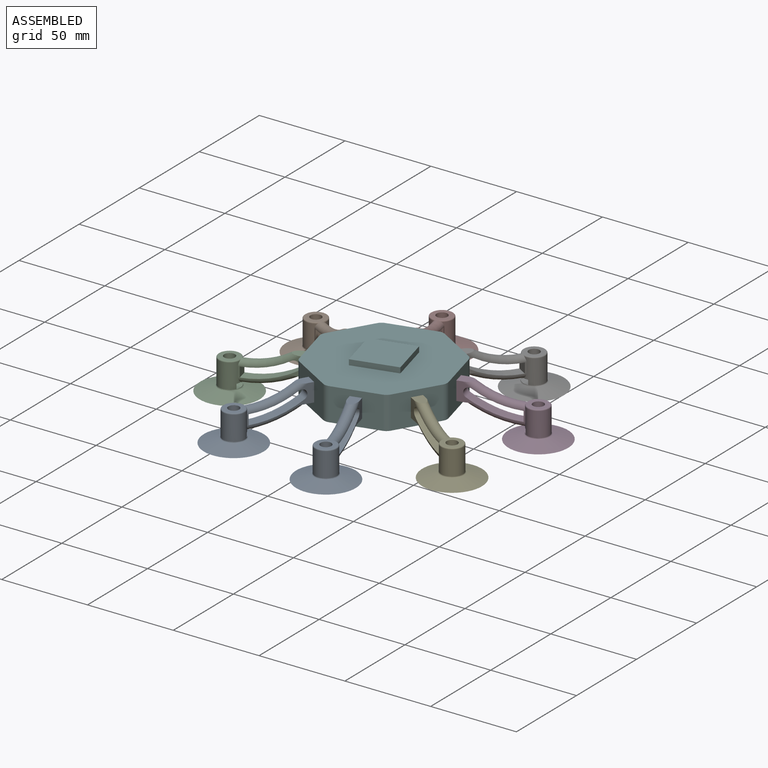
[diagram: assembled view]
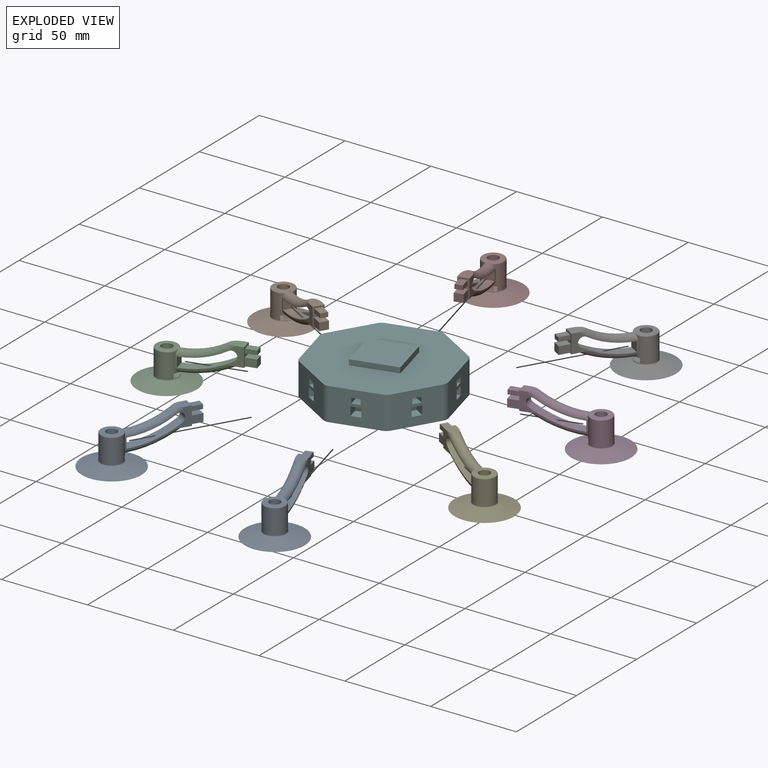
[diagram: exploded view]
GUIDED TOUR — MATED ASSEMBLY (Onshape document 2c69b0f62aaf6b4f8146618b, AutoMate assembly 2c69b0f62aaf6b4f8146618b_2bfa650f6eb8ac7df8bd2d8d_5acf13a950e20be320c6e51d_default)

This assembly has 9 components, labeled P0..P8 below (a component is one placed occurrence of a part; the same part can appear more than once), held together by 8 mates. A mate is a constraint between two components; its type names the relative motion it leaves free:
  FASTENED — locks the two components together rigidly (no relative motion).
Axis/direction vectors are unit vectors and 'through' points are millimeter coordinates, both in the assembly's world frame.

MATES
  1. FASTENED "Fastened 4": P5 <-> P3, direction (0.969, 0.249, 0.000) through (28.76, 7.56, -0.92) mm
  2. FASTENED "Fastened 2": P7 <-> P5, direction (0.249, -0.969, 0.000) through (-9.89, 30.42, -1.28) mm
  3. FASTENED "Fastened 8": P2 <-> P5, direction (0.969, 0.249, 0.000) through (-32.75, -8.22, -1.29) mm
  4. FASTENED "Fastened 3": P5 <-> P6, direction (0.509, 0.861, 0.000) through (14.17, 26.99, -1.27) mm
  5. FASTENED "Fastened 1": P1 <-> P5, direction (0.861, -0.509, 0.000) through (-29.32, 15.84, -1.29) mm
  6. FASTENED "Fastened 7": P0 <-> P5, direction (0.509, 0.861, 0.000) through (-18.16, -27.66, -0.66) mm
  7. FASTENED "Fastened 5": P4 <-> P5, direction (-0.861, 0.509, 0.000) through (25.33, -16.50, -0.66) mm
  8. FASTENED "Fastened 6": P5 <-> P8, direction (0.249, -0.969, 0.000) through (5.90, -31.09, -0.66) mm

ASSEMBLY ORDER
  1. P5 — the base component [order heuristic]
  2. P1 — core [order heuristic]
  3. P2 — core [order heuristic]
  4. P4 — core [order heuristic]
  5. P0 [order verified]
  6. P7 — core [order heuristic]
  7. P8 — core [order heuristic]
  8. P6 — core [order heuristic]
  9. P3 [order verified]
(P0, P3 verified with a relaxed clearance tolerance: the source model stores slight part interference there.)
Order-tag legend:
  [order verified] — this step's position reverses a verified removal order: the component was checked to insert without passing through the ones already placed.
  [order heuristic] — the first 7 components form the assembly's core: parts whose collision-free extraction could not be verified, listed in mate-graph order.

Of the 9 components, 1 carries the full construction recipe — the FeatureScript program that regenerates the part's solid from scratch; the rest are supplied as boundary geometry only.
Each toured component is shown spotlighted twice — in the assembled view, then in the exploded view, where a leader line traces a displaced component back to its assembled socket (saturated green if recipe-attached, orange if geometry-only; every other component desaturated gray) — followed by its recipe or geometry summary and the mates that hold it.
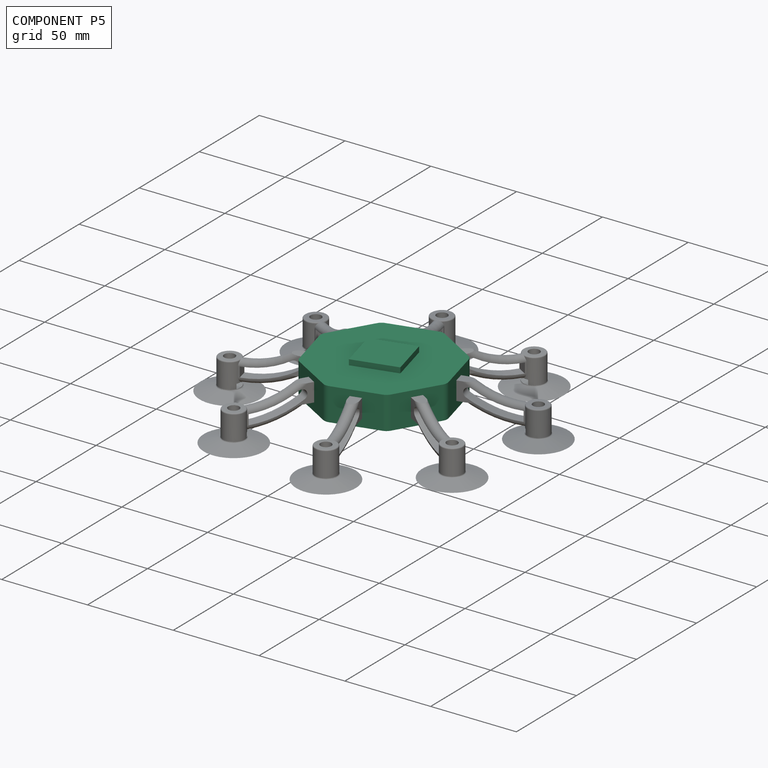
[diagram: component P5 — assembled]
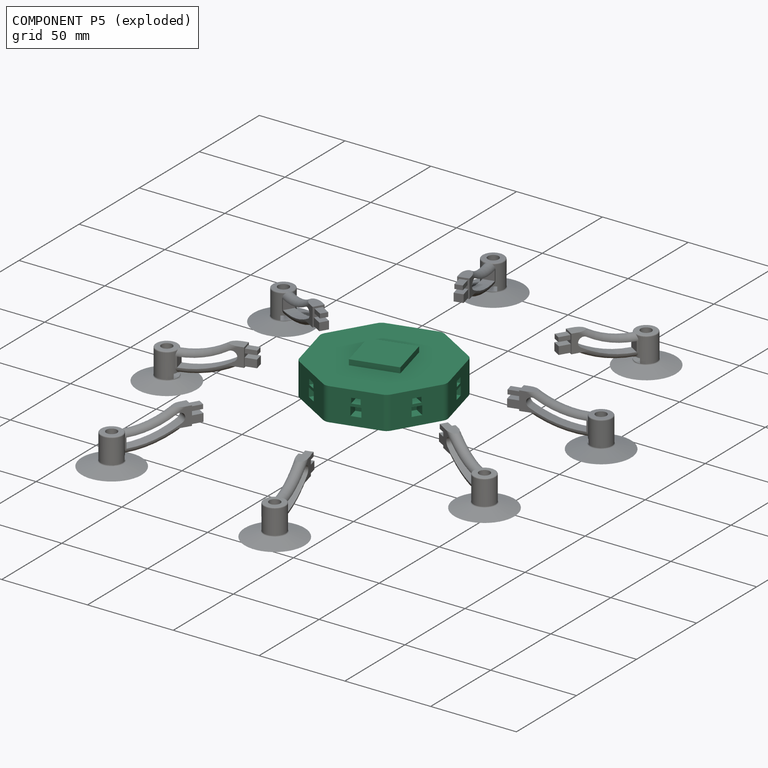
[diagram: component P5 — exploded]
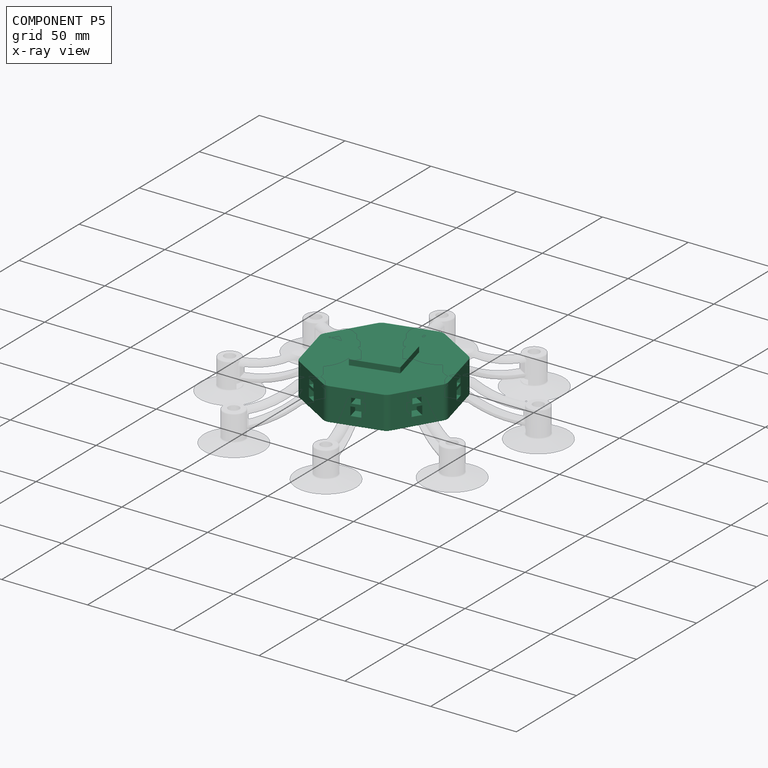
[diagram: component P5 — x-ray view]
COMPONENT P5 — recipe-attached (CADFS 00175157, mesh-verified: the recipe's output STEP matches this component's geometry to below the mesh-comparison resolution (tessellation chordal tolerance ~0.175 mm)).
Held by: FASTENED mate "Fastened 4" to P3; FASTENED mate "Fastened 2" to P7; FASTENED mate "Fastened 8" to P2; FASTENED mate "Fastened 3" to P6; FASTENED mate "Fastened 1" to P1; FASTENED mate "Fastened 7" to P0; FASTENED mate "Fastened 5" to P4; FASTENED mate "Fastened 6" to P8.
Construction recipe (FeatureScript — the CAD program that rebuilds this solid; sketch coordinates are in the units given by the * unit suffixes, e.g. mm):

FeatureScript 1511;
import(path : "onshape/std/geometry.fs", version : "1511.0");
import(path : "onshape/std/common.fs", version : "1511.0");
const mm = millimeter;
const VERTEX = EntityType.VERTEX;
const EDGE = EntityType.EDGE;
const FACE = EntityType.FACE;
const BODY = EntityType.BODY;
function v(x, y){return vector(x, y);}
function OD(order){return orderDisambiguation(order);}
function OSD(set){return originalSetDisambiguation(set);}
function TD(topology){return topologyDisambiguation(topology);}
function TDD(query){return trueDependencyDisambiguation(query);}
function sQuery(a, b, c) {return sketchEntityQuery(a, b, c);}

annotation { "Feature Type Name" : "Feature", "Feature Type Description" : "" }
export const myFeature = defineFeature(function(context is Context, id is Id, definition is map)
    precondition{}
    {
        {
            var Q0;
            Q0=qCreatedBy(makeId("Top.planeOp"),FACE);
            var sketch = newSketch(context, id + "F0", { "sketchPlane" : qUnion([Q0])});
            skCircle(sketch, "E0.cCircle", {"center": v(0, 0) * mm, "radius": 38.1 * mm, "construction": true});
            skLineSegment(sketch, "E0.0", {"start": v(-40.83, 5.82) * mm, "end": v(-24.75, 32.98) * mm});
            skLineSegment(sketch, "E0.1", {"start": v(-24.75, 32.98) * mm, "end": v(5.82, 40.83) * mm});
            skLineSegment(sketch, "E0.2", {"start": v(5.82, 40.83) * mm, "end": v(32.98, 24.75) * mm});
            skLineSegment(sketch, "E0.3", {"start": v(32.98, 24.75) * mm, "end": v(40.83, -5.82) * mm});
            skLineSegment(sketch, "E0.4", {"start": v(40.83, -5.82) * mm, "end": v(24.75, -32.98) * mm});
            skLineSegment(sketch, "E0.5", {"start": v(24.75, -32.98) * mm, "end": v(-5.82, -40.83) * mm});
            skLineSegment(sketch, "E0.6", {"start": v(-5.82, -40.83) * mm, "end": v(-32.98, -24.75) * mm});
            skLineSegment(sketch, "E0.7", {"start": v(-32.98, -24.75) * mm, "end": v(-40.83, 5.82) * mm});
            skPoint(sketch, "E0.0.midPoint", {"position": v(-32.8, 19.4) * mm});
            skLineSegment(sketch, "E1", {"start": v(32.8, -19.4) * mm, "end": v(-32.8, 19.4) * mm});
            skLineSegment(sketch, "E2", {"start": v(9.47, -36.9) * mm, "end": v(-9.47, 36.9) * mm});
            skLineSegment(sketch, "E3", {"start": v(19.4, 32.8) * mm, "end": v(-19.4, -32.8) * mm});
            skLineSegment(sketch, "E4", {"start": v(36.9, 9.47) * mm, "end": v(-36.9, -9.47) * mm});
            skSolve(sketch);
        }
        {
            var Q0;
            Q0=makeQuery(id+"F0.imprint","IMPRINT",FACE,{"disambiguationData":[TD([[makeQuery(id+"F0.imprint","IMPRINT",EDGE,{"derivedFrom":sQuery(id+"F0.wireOp",EDGE,"E0.0")}),-1.0]])]});
            var Q1;
            {var subQ0=sQuery(id+"F0.wireOp",EDGE,"E0.2");var subQ1=sQuery(id+"F0.wireOp",EDGE,"E0.1");var subQ2=makeQuery(id+"F0.imprint","INTERSECT",VERTEX,{"derivedFrom":[subQ1,subQ0]});Q1=makeQuery(id+"F0.imprint","IMPRINT",FACE,{"disambiguationData":[TD([[makeQuery(id+"F0.imprint","IMPRINT",EDGE,{"disambiguationData":[TD([[subQ2,1.0]])],"derivedFrom":subQ1}),-1.0]])]});}
            var Q2;
            {var subQ0=sQuery(id+"F0.wireOp",EDGE,"E0.3");var subQ1=sQuery(id+"F0.wireOp",EDGE,"E0.2");var subQ2=makeQuery(id+"F0.imprint","INTERSECT",VERTEX,{"derivedFrom":[subQ1,subQ0]});Q2=makeQuery(id+"F0.imprint","IMPRINT",FACE,{"disambiguationData":[TD([[makeQuery(id+"F0.imprint","IMPRINT",EDGE,{"disambiguationData":[TD([[subQ2,1.0]])],"derivedFrom":subQ1}),-1.0]])]});}
            var Q3;
            {var subQ0=sQuery(id+"F0.wireOp",EDGE,"E0.4");var subQ1=sQuery(id+"F0.wireOp",EDGE,"E0.3");var subQ2=makeQuery(id+"F0.imprint","INTERSECT",VERTEX,{"derivedFrom":[subQ1,subQ0]});Q3=makeQuery(id+"F0.imprint","IMPRINT",FACE,{"disambiguationData":[TD([[makeQuery(id+"F0.imprint","IMPRINT",EDGE,{"disambiguationData":[TD([[subQ2,1.0]])],"derivedFrom":subQ1}),-1.0]])]});}
            var Q4;
            {var subQ0=sQuery(id+"F0.wireOp",EDGE,"E0.5");var subQ1=sQuery(id+"F0.wireOp",EDGE,"E0.4");var subQ2=makeQuery(id+"F0.imprint","INTERSECT",VERTEX,{"derivedFrom":[subQ1,subQ0]});Q4=makeQuery(id+"F0.imprint","IMPRINT",FACE,{"disambiguationData":[TD([[makeQuery(id+"F0.imprint","IMPRINT",EDGE,{"disambiguationData":[TD([[subQ2,1.0]])],"derivedFrom":subQ1}),-1.0]])]});}
            var Q5;
            {var subQ0=sQuery(id+"F0.wireOp",EDGE,"E0.6");var subQ1=sQuery(id+"F0.wireOp",EDGE,"E0.5");var subQ2=makeQuery(id+"F0.imprint","INTERSECT",VERTEX,{"derivedFrom":[subQ1,subQ0]});Q5=makeQuery(id+"F0.imprint","IMPRINT",FACE,{"disambiguationData":[TD([[makeQuery(id+"F0.imprint","IMPRINT",EDGE,{"disambiguationData":[TD([[subQ2,1.0]])],"derivedFrom":subQ1}),-1.0]])]});}
            var Q6;
            {var subQ0=sQuery(id+"F0.wireOp",EDGE,"E0.7");var subQ1=sQuery(id+"F0.wireOp",EDGE,"E0.6");var subQ2=makeQuery(id+"F0.imprint","INTERSECT",VERTEX,{"derivedFrom":[subQ1,subQ0]});Q6=makeQuery(id+"F0.imprint","IMPRINT",FACE,{"disambiguationData":[TD([[makeQuery(id+"F0.imprint","IMPRINT",EDGE,{"disambiguationData":[TD([[subQ2,1.0]])],"derivedFrom":subQ1}),-1.0]])]});}
            extrude(context, id + "F1", {"entities" : qUnion([Q0, Q1, Q2, Q3, Q4, Q5, Q6]), "endBound" : BoundingType.SYMMETRIC, "depth" : 19.05 * mm});
        }
        {
            var Q0;
            Q0=makeQuery(id+"F1.opExtrude","SWEPT_FACE",FACE,{"disambiguationData":[OSD([sQuery(id+"F0.wireOp",EDGE,"E0.7")])]});
            var sketch = newSketch(context, id + "F2", { "sketchPlane" : qUnion([Q0])});
            skPoint(sketch, "E5.middle", {"position": v(0, 0) * mm});
            skPoint(sketch, "E6", {"position": v(0, -5.06) * mm});
            skLineSegment(sketch, "E7", {"start": v(-2.8, -2.52) * mm, "end": v(-2.8, 0) * mm});
            skLineSegment(sketch, "E8", {"start": v(2.8, -2.52) * mm, "end": v(2.8, 0) * mm});
            skLineSegment(sketch, "E9", {"start": v(-2.8, 0) * mm, "end": v(2.8, 0) * mm});
            skLineSegment(sketch, "E10.MirrorCS", {"start": v(-2.8, -2.52) * mm, "end": v(-2.8, -5.04) * mm});
            skLineSegment(sketch, "E11.MirrorCS", {"start": v(-2.8, -5.04) * mm, "end": v(2.8, -5.04) * mm});
            skLineSegment(sketch, "E12.MirrorCS", {"start": v(2.8, -2.52) * mm, "end": v(2.8, -5.04) * mm});
            skPoint(sketch, "E13", {"position": v(0, 1.56) * mm});
            skLineSegment(sketch, "E14", {"start": v(0, 1.56) * mm, "end": v(-2.41, 1.56) * mm});
            skLineSegment(sketch, "E15.MirrorCS", {"start": v(0, 1.56) * mm, "end": v(2.41, 1.56) * mm});
            skLineSegment(sketch, "E16", {"start": v(2.41, 1.56) * mm, "end": v(2.41, 4.6) * mm});
            skLineSegment(sketch, "E17.MirrorCS", {"start": v(-2.41, 1.56) * mm, "end": v(-2.41, 4.6) * mm});
            skLineSegment(sketch, "E18", {"start": v(-2.41, 4.6) * mm, "end": v(2.41, 4.6) * mm});
            skSolve(sketch);
        }
        {
            var Q0;
            Q0 = qSketchRegion(id + "F2", true);
            extrude(context, id + "F3", {"entities" : qUnion([Q0]), "operationType" : NewBodyOperationType.REMOVE, "oppositeDirection" : true, "depth" : 6.35 * mm});
        }
        {
            var Q0;
            Q0=makeQuery(id+"F1.opExtrude","SWEPT_FACE",FACE,{"disambiguationData":[OSD([sQuery(id+"F0.wireOp",EDGE,"E0.1")])]});
            var sketch = newSketch(context, id + "F4", { "sketchPlane" : qUnion([Q0])});
            skPoint(sketch, "E19", {"position": v(0, -9.53) * mm});
            skPoint(sketch, "E20", {"position": v(0, -5.04) * mm});
            skPoint(sketch, "E21", {"position": v(0, 1.6) * mm});
            skLineSegment(sketch, "E22", {"start": v(0, 1.6) * mm, "end": v(2.41, 1.6) * mm});
            skLineSegment(sketch, "E23", {"start": v(2.41, 1.6) * mm, "end": v(2.41, 4.64) * mm});
            skLineSegment(sketch, "E24", {"start": v(2.41, 4.64) * mm, "end": v(0, 4.64) * mm});
            skLineSegment(sketch, "E25.MirrorCS", {"start": v(-2.41, 4.64) * mm, "end": v(0, 4.64) * mm});
            skLineSegment(sketch, "E26.MirrorCS", {"start": v(-2.41, 1.6) * mm, "end": v(-2.41, 4.64) * mm});
            skLineSegment(sketch, "E27.MirrorCS", {"start": v(0, 1.6) * mm, "end": v(-2.41, 1.6) * mm});
            skLineSegment(sketch, "E28", {"start": v(0, -5.04) * mm, "end": v(2.8, -5.04) * mm});
            skLineSegment(sketch, "E29", {"start": v(2.8, -5.04) * mm, "end": v(2.8, 0.04) * mm});
            skLineSegment(sketch, "E30", {"start": v(2.8, 0.04) * mm, "end": v(0, 0) * mm});
            skLineSegment(sketch, "E31.MirrorCS", {"start": v(-2.8, 0.04) * mm, "end": v(0, 0) * mm});
            skLineSegment(sketch, "E32.MirrorCS", {"start": v(-2.8, -5.04) * mm, "end": v(-2.8, 0.04) * mm});
            skLineSegment(sketch, "E33.MirrorCS", {"start": v(0, -5.04) * mm, "end": v(-2.8, -5.04) * mm});
            skSolve(sketch);
        }
        {
            var Q0;
            Q0=makeQuery(id+"F4.imprint","IMPRINT",FACE,{"disambiguationData":[TD([[makeQuery(id+"F4.imprint","IMPRINT",EDGE,{"derivedFrom":sQuery(id+"F4.wireOp",EDGE,"LZL7hc5V-V0Lx-cx1U-TuNf-BSn2dO84Y1Hg")}),-1.0]])]});
            var Q1;
            Q1=makeQuery(id+"F4.imprint","IMPRINT",FACE,{"disambiguationData":[TD([[makeQuery(id+"F4.imprint","IMPRINT",EDGE,{"derivedFrom":sQuery(id+"F4.wireOp",EDGE,"E28")}),1.0]])]});
            var Q2;
            Q2=makeQuery(id+"F4.imprint","IMPRINT",FACE,{"disambiguationData":[TD([[makeQuery(id+"F4.imprint","IMPRINT",EDGE,{"derivedFrom":sQuery(id+"F4.wireOp",EDGE,"E22")}),1.0]])]});
            extrude(context, id + "F5", {"entities" : qUnion([Q0, Q1, Q2]), "operationType" : NewBodyOperationType.REMOVE, "oppositeDirection" : true, "depth" : 6.35 * mm});
        }
        {
            var Q0;
            Q0=makeQuery(id+"F1.opExtrude","SWEPT_FACE",FACE,{"disambiguationData":[OSD([sQuery(id+"F0.wireOp",EDGE,"E0.0")])]});
            var sketch = newSketch(context, id + "F6", { "sketchPlane" : qUnion([Q0])});
            skPoint(sketch, "E34", {"position": v(0, -5.04) * mm});
            skLineSegment(sketch, "E35", {"start": v(0, -5.04) * mm, "end": v(2.8, -5.04) * mm});
            skLineSegment(sketch, "E36", {"start": v(2.8, 0) * mm, "end": v(2.8, -5.04) * mm});
            skLineSegment(sketch, "E37.MirrorCS", {"start": v(-2.8, 0) * mm, "end": v(-2.8, -5.04) * mm});
            skLineSegment(sketch, "E38.MirrorCS", {"start": v(0, -5.04) * mm, "end": v(-2.8, -5.04) * mm});
            skPoint(sketch, "E39", {"position": v(0, 1.6) * mm});
            skLineSegment(sketch, "E40", {"start": v(-2.8, 0) * mm, "end": v(2.8, 0) * mm});
            skLineSegment(sketch, "E41", {"start": v(0, 1.6) * mm, "end": v(2.41, 1.6) * mm});
            skLineSegment(sketch, "E42", {"start": v(2.41, 1.6) * mm, "end": v(2.41, 4.64) * mm});
            skLineSegment(sketch, "E43", {"start": v(2.41, 4.64) * mm, "end": v(0, 4.64) * mm});
            skLineSegment(sketch, "E44.MirrorCS", {"start": v(-2.41, 4.64) * mm, "end": v(0, 4.64) * mm});
            skLineSegment(sketch, "E45.MirrorCS", {"start": v(-2.41, 1.6) * mm, "end": v(-2.41, 4.64) * mm});
            skLineSegment(sketch, "E46.MirrorCS", {"start": v(0, 1.6) * mm, "end": v(-2.41, 1.6) * mm});
            skSolve(sketch);
        }
        {
            var Q0;
            Q0=makeQuery(id+"F6.imprint","IMPRINT",FACE,{"disambiguationData":[TD([[makeQuery(id+"F6.imprint","IMPRINT",EDGE,{"derivedFrom":sQuery(id+"F6.wireOp",EDGE,"E41")}),1.0]])]});
            var Q1;
            Q1=makeQuery(id+"F6.imprint","IMPRINT",FACE,{"disambiguationData":[TD([[makeQuery(id+"F6.imprint","IMPRINT",EDGE,{"derivedFrom":sQuery(id+"F6.wireOp",EDGE,"E35")}),1.0]])]});
            extrude(context, id + "F7", {"entities" : qUnion([Q0, Q1]), "operationType" : NewBodyOperationType.REMOVE, "oppositeDirection" : true, "depth" : 6.35 * mm});
        }
        {
            var Q0;
            Q0=makeQuery(id+"F1.opExtrude","SWEPT_FACE",FACE,{"disambiguationData":[OSD([sQuery(id+"F0.wireOp",EDGE,"E0.2")])]});
            var sketch = newSketch(context, id + "F8", { "sketchPlane" : qUnion([Q0])});
            skPoint(sketch, "E47", {"position": v(0, -5.04) * mm});
            skLineSegment(sketch, "E48", {"start": v(0, -5.04) * mm, "end": v(2.8, -5.04) * mm});
            skLineSegment(sketch, "E49", {"start": v(2.8, -5.04) * mm, "end": v(2.8, 0.04) * mm});
            skLineSegment(sketch, "E50.MirrorCS", {"start": v(-2.8, -5.04) * mm, "end": v(-2.8, 0.04) * mm});
            skLineSegment(sketch, "E51.MirrorCS", {"start": v(0, -5.04) * mm, "end": v(-2.8, -5.04) * mm});
            skLineSegment(sketch, "E52", {"start": v(-2.8, 0.04) * mm, "end": v(2.8, 0.04) * mm});
            skPoint(sketch, "E53", {"position": v(0, 1.63) * mm});
            skLineSegment(sketch, "E54", {"start": v(0, 1.63) * mm, "end": v(2.41, 1.63) * mm});
            skLineSegment(sketch, "E55", {"start": v(2.41, 1.63) * mm, "end": v(2.41, 4.68) * mm});
            skLineSegment(sketch, "E56.MirrorCS", {"start": v(0, 1.63) * mm, "end": v(-2.41, 1.63) * mm});
            skLineSegment(sketch, "E57.MirrorCS", {"start": v(-2.41, 1.63) * mm, "end": v(-2.41, 4.68) * mm});
            skLineSegment(sketch, "E58", {"start": v(-2.41, 4.68) * mm, "end": v(2.41, 4.68) * mm});
            skSolve(sketch);
        }
        {
            var Q0;
            Q0=makeQuery(id+"F8.imprint","IMPRINT",FACE,{"disambiguationData":[TD([[makeQuery(id+"F8.imprint","IMPRINT",EDGE,{"derivedFrom":sQuery(id+"F8.wireOp",EDGE,"E54")}),1.0]])]});
            var Q1;
            Q1=makeQuery(id+"F8.imprint","IMPRINT",FACE,{"disambiguationData":[TD([[makeQuery(id+"F8.imprint","IMPRINT",EDGE,{"derivedFrom":sQuery(id+"F8.wireOp",EDGE,"E48")}),1.0]])]});
            extrude(context, id + "F9", {"entities" : qUnion([Q0, Q1]), "operationType" : NewBodyOperationType.REMOVE, "oppositeDirection" : true, "depth" : 6.35 * mm});
        }
        {
            var Q0;
            Q0=makeQuery(id+"F1.opExtrude","SWEPT_FACE",FACE,{"disambiguationData":[OSD([sQuery(id+"F0.wireOp",EDGE,"E0.3")])]});
            var sketch = newSketch(context, id + "F10", { "sketchPlane" : qUnion([Q0])});
            skPoint(sketch, "E59", {"position": v(0, -4.7) * mm});
            skLineSegment(sketch, "E60", {"start": v(0, -4.7) * mm, "end": v(2.8, -4.7) * mm});
            skLineSegment(sketch, "E61", {"start": v(2.8, -4.7) * mm, "end": v(2.8, 0.39) * mm});
            skLineSegment(sketch, "E62.MirrorCS", {"start": v(-2.8, -4.7) * mm, "end": v(-2.8, 0.39) * mm});
            skLineSegment(sketch, "E63.MirrorCS", {"start": v(0, -4.7) * mm, "end": v(-2.8, -4.7) * mm});
            skLineSegment(sketch, "E64", {"start": v(-2.8, 0.39) * mm, "end": v(2.8, 0.39) * mm});
            skPoint(sketch, "E65", {"position": v(0, 1.98) * mm});
            skLineSegment(sketch, "E66", {"start": v(0, 1.98) * mm, "end": v(2.41, 1.98) * mm});
            skLineSegment(sketch, "E67", {"start": v(2.41, 1.98) * mm, "end": v(2.41, 5.03) * mm});
            skLineSegment(sketch, "E68.MirrorCS", {"start": v(0, 1.98) * mm, "end": v(-2.41, 1.98) * mm});
            skLineSegment(sketch, "E69.MirrorCS", {"start": v(-2.41, 1.98) * mm, "end": v(-2.41, 5.03) * mm});
            skLineSegment(sketch, "E70", {"start": v(-2.41, 5.03) * mm, "end": v(2.41, 5.03) * mm});
            skSolve(sketch);
        }
        {
            var Q0;
            Q0 = qSketchRegion(id + "F10", true);
            extrude(context, id + "F11", {"entities" : qUnion([Q0]), "operationType" : NewBodyOperationType.REMOVE, "oppositeDirection" : true, "depth" : 6.35 * mm});
        }
        {
            var Q0;
            Q0=makeQuery(id+"F1.opExtrude","SWEPT_FACE",FACE,{"disambiguationData":[OSD([sQuery(id+"F0.wireOp",EDGE,"E0.4")])]});
            var sketch = newSketch(context, id + "F12", { "sketchPlane" : qUnion([Q0])});
            skPoint(sketch, "E71", {"position": v(0, -8.9) * mm});
            skPoint(sketch, "E72", {"position": v(0, -4.42) * mm});
            skPoint(sketch, "E73", {"position": v(0, 2.22) * mm});
            skLineSegment(sketch, "E74", {"start": v(0, 2.22) * mm, "end": v(2.41, 2.22) * mm});
            skLineSegment(sketch, "E75", {"start": v(2.41, 2.22) * mm, "end": v(2.41, 5.26) * mm});
            skLineSegment(sketch, "E76", {"start": v(2.41, 5.26) * mm, "end": v(0, 5.26) * mm});
            skLineSegment(sketch, "E77.MirrorCS", {"start": v(-2.41, 5.26) * mm, "end": v(0, 5.26) * mm});
            skLineSegment(sketch, "E78.MirrorCS", {"start": v(-2.41, 2.22) * mm, "end": v(-2.41, 5.26) * mm});
            skLineSegment(sketch, "E79.MirrorCS", {"start": v(0, 2.22) * mm, "end": v(-2.41, 2.22) * mm});
            skLineSegment(sketch, "E80", {"start": v(0, -4.42) * mm, "end": v(2.8, -4.42) * mm});
            skLineSegment(sketch, "E81", {"start": v(2.8, -4.42) * mm, "end": v(2.8, 0.66) * mm});
            skLineSegment(sketch, "E82", {"start": v(2.8, 0.66) * mm, "end": v(0, 0.62) * mm});
            skLineSegment(sketch, "E83.MirrorCS", {"start": v(-2.8, 0.66) * mm, "end": v(0, 0.62) * mm});
            skLineSegment(sketch, "E84.MirrorCS", {"start": v(-2.8, -4.42) * mm, "end": v(-2.8, 0.66) * mm});
            skLineSegment(sketch, "E85.MirrorCS", {"start": v(0, -4.42) * mm, "end": v(-2.8, -4.42) * mm});
            skSolve(sketch);
        }
        {
            var Q0;
            Q0=makeQuery(id+"F12.imprint","IMPRINT",FACE,{"disambiguationData":[TD([[makeQuery(id+"F12.imprint","IMPRINT",EDGE,{"derivedFrom":sQuery(id+"F12.wireOp",EDGE,"E80")}),1.0]])]});
            var Q1;
            Q1=makeQuery(id+"F12.imprint","IMPRINT",FACE,{"disambiguationData":[TD([[makeQuery(id+"F12.imprint","IMPRINT",EDGE,{"derivedFrom":sQuery(id+"F12.wireOp",EDGE,"E74")}),1.0]])]});
            extrude(context, id + "F13", {"entities" : qUnion([Q0, Q1]), "operationType" : NewBodyOperationType.REMOVE, "oppositeDirection" : true, "depth" : 6.35 * mm});
        }
        {
            var Q0;
            Q0=makeQuery(id+"F1.opExtrude","SWEPT_FACE",FACE,{"disambiguationData":[OSD([sQuery(id+"F0.wireOp",EDGE,"E0.5")])]});
            var sketch = newSketch(context, id + "F14", { "sketchPlane" : qUnion([Q0])});
            skPoint(sketch, "E86", {"position": v(0, -8.9) * mm});
            skPoint(sketch, "E87", {"position": v(0, -4.42) * mm});
            skPoint(sketch, "E88", {"position": v(0, 2.22) * mm});
            skLineSegment(sketch, "E89", {"start": v(0, 2.22) * mm, "end": v(2.41, 2.22) * mm});
            skLineSegment(sketch, "E90", {"start": v(2.41, 2.22) * mm, "end": v(2.41, 5.26) * mm});
            skLineSegment(sketch, "E91", {"start": v(2.41, 5.26) * mm, "end": v(0, 5.26) * mm});
            skLineSegment(sketch, "E92.MirrorCS", {"start": v(-2.41, 5.26) * mm, "end": v(0, 5.26) * mm});
            skLineSegment(sketch, "E93.MirrorCS", {"start": v(-2.41, 2.22) * mm, "end": v(-2.41, 5.26) * mm});
            skLineSegment(sketch, "E94.MirrorCS", {"start": v(0, 2.22) * mm, "end": v(-2.41, 2.22) * mm});
            skLineSegment(sketch, "E95", {"start": v(0, -4.42) * mm, "end": v(2.8, -4.42) * mm});
            skLineSegment(sketch, "E96", {"start": v(2.8, -4.42) * mm, "end": v(2.8, 0.66) * mm});
            skLineSegment(sketch, "E97", {"start": v(2.8, 0.66) * mm, "end": v(0, 0.62) * mm});
            skLineSegment(sketch, "E98.MirrorCS", {"start": v(-2.8, 0.66) * mm, "end": v(0, 0.62) * mm});
            skLineSegment(sketch, "E99.MirrorCS", {"start": v(-2.8, -4.42) * mm, "end": v(-2.8, 0.66) * mm});
            skLineSegment(sketch, "E100.MirrorCS", {"start": v(0, -4.42) * mm, "end": v(-2.8, -4.42) * mm});
            skSolve(sketch);
        }
        {
            var Q0;
            Q0=makeQuery(id+"F14.imprint","IMPRINT",FACE,{"disambiguationData":[TD([[makeQuery(id+"F14.imprint","IMPRINT",EDGE,{"derivedFrom":sQuery(id+"F14.wireOp",EDGE,"E95")}),1.0]])]});
            var Q1;
            Q1=makeQuery(id+"F14.imprint","IMPRINT",FACE,{"disambiguationData":[TD([[makeQuery(id+"F14.imprint","IMPRINT",EDGE,{"derivedFrom":sQuery(id+"F14.wireOp",EDGE,"E89")}),1.0]])]});
            extrude(context, id + "F15", {"entities" : qUnion([Q0, Q1]), "operationType" : NewBodyOperationType.REMOVE, "oppositeDirection" : true, "depth" : 6.35 * mm});
        }
        {
            var Q0;
            Q0=makeQuery(id+"F1.opExtrude","SWEPT_FACE",FACE,{"disambiguationData":[OSD([sQuery(id+"F0.wireOp",EDGE,"E0.6")])]});
            var sketch = newSketch(context, id + "F16", { "sketchPlane" : qUnion([Q0])});
            skPoint(sketch, "E101", {"position": v(0, -8.9) * mm});
            skPoint(sketch, "E102", {"position": v(0, -4.42) * mm});
            skPoint(sketch, "E103", {"position": v(0, 2.22) * mm});
            skLineSegment(sketch, "E104", {"start": v(0, 2.22) * mm, "end": v(2.41, 2.22) * mm});
            skLineSegment(sketch, "E105", {"start": v(2.41, 2.22) * mm, "end": v(2.41, 5.26) * mm});
            skLineSegment(sketch, "E106", {"start": v(2.41, 5.26) * mm, "end": v(0, 5.26) * mm});
            skLineSegment(sketch, "E107.MirrorCS", {"start": v(-2.41, 5.26) * mm, "end": v(0, 5.26) * mm});
            skLineSegment(sketch, "E108.MirrorCS", {"start": v(-2.41, 2.22) * mm, "end": v(-2.41, 5.26) * mm});
            skLineSegment(sketch, "E109.MirrorCS", {"start": v(0, 2.22) * mm, "end": v(-2.41, 2.22) * mm});
            skLineSegment(sketch, "E110", {"start": v(0, -4.42) * mm, "end": v(2.8, -4.42) * mm});
            skLineSegment(sketch, "E111", {"start": v(2.8, -4.42) * mm, "end": v(2.8, 0.66) * mm});
            skLineSegment(sketch, "E112", {"start": v(2.8, 0.66) * mm, "end": v(0, 0.62) * mm});
            skLineSegment(sketch, "E113.MirrorCS", {"start": v(-2.8, 0.66) * mm, "end": v(0, 0.62) * mm});
            skLineSegment(sketch, "E114.MirrorCS", {"start": v(-2.8, -4.42) * mm, "end": v(-2.8, 0.66) * mm});
            skLineSegment(sketch, "E115.MirrorCS", {"start": v(0, -4.42) * mm, "end": v(-2.8, -4.42) * mm});
            skSolve(sketch);
        }
        {
            var Q0;
            Q0=makeQuery(id+"F16.imprint","IMPRINT",FACE,{"disambiguationData":[TD([[makeQuery(id+"F16.imprint","IMPRINT",EDGE,{"derivedFrom":sQuery(id+"F16.wireOp",EDGE,"E104")}),1.0]])]});
            var Q1;
            Q1=makeQuery(id+"F16.imprint","IMPRINT",FACE,{"disambiguationData":[TD([[makeQuery(id+"F16.imprint","IMPRINT",EDGE,{"derivedFrom":sQuery(id+"F16.wireOp",EDGE,"E110")}),1.0]])]});
            extrude(context, id + "F17", {"entities" : qUnion([Q0, Q1]), "operationType" : NewBodyOperationType.REMOVE, "oppositeDirection" : true, "depth" : 6.35 * mm});
        }
        {
            var Q0;
            Q0=makeQuery(id+"F1.opExtrude","CAP_FACE",FACE,{"disambiguationData":[OSD([sQuery(id+"F0.wireOp",EDGE,"E0.0"),sQuery(id+"F0.wireOp",EDGE,"E0.1"),sQuery(id+"F0.wireOp",EDGE,"E0.2"),sQuery(id+"F0.wireOp",EDGE,"E0.3"),sQuery(id+"F0.wireOp",EDGE,"E0.4"),sQuery(id+"F0.wireOp",EDGE,"E0.5"),sQuery(id+"F0.wireOp",EDGE,"E0.6"),sQuery(id+"F0.wireOp",EDGE,"E0.7")])],"isStart":false});
            var sketch = newSketch(context, id + "F18", { "sketchPlane" : qUnion([Q0])});
            skLineSegment(sketch, "E116", {"start": v(-24.75, 32.98) * mm, "end": v(-5.82, -40.83) * mm});
            skLineSegment(sketch, "E117", {"start": v(5.82, 40.83) * mm, "end": v(24.75, -32.98) * mm});
            skLineSegment(sketch, "E118", {"start": v(3.16, -12.3) * mm, "end": v(-12.13, -16.22) * mm});
            skLineSegment(sketch, "E119", {"start": v(3.16, -12.3) * mm, "end": v(18.44, -8.38) * mm});
            skLineSegment(sketch, "E120", {"start": v(-3.16, 12.3) * mm, "end": v(-18.44, 8.38) * mm});
            skLineSegment(sketch, "E121", {"start": v(-3.16, 12.3) * mm, "end": v(12.13, 16.22) * mm});
            skPoint(sketch, "E122", {"position": v(-15.86, 9.04) * mm});
            skPoint(sketch, "E123", {"position": v(9.54, 15.56) * mm});
            skPoint(sketch, "E124", {"position": v(-9.54, -15.56) * mm});
            skPoint(sketch, "E125", {"position": v(15.86, -9.04) * mm});
            skLineSegment(sketch, "E126", {"start": v(-15.86, 9.04) * mm, "end": v(-9.54, -15.56) * mm});
            skLineSegment(sketch, "E127", {"start": v(9.54, 15.56) * mm, "end": v(15.86, -9.04) * mm});
            skSolve(sketch);
        }
        {
            var Q0;
            {var subQ4=sQuery(id+"F18.wireOp",EDGE,"E126");Q0=makeQuery(id+"F18.imprint","IMPRINT",FACE,{"disambiguationData":[TD([[makeQuery(id+"F18.imprint","IMPRINT",EDGE,{"derivedFrom":subQ4}),1.0]])]});}
            extrude(context, id + "F19", {"entities" : qUnion([Q0]), "operationType" : NewBodyOperationType.ADD, "depth" : 3.17 * mm});
        }
        {
            var Q0;
            Q0=makeQuery(id+"F1.opExtrude","SWEPT_EDGE",EDGE,{"disambiguationData":[OSD([sQuery(id+"F0.wireOp",EDGE,"E0.5"),sQuery(id+"F0.wireOp",EDGE,"E0.6")])]});
            var Q1;
            Q1=makeQuery(id+"F1.opExtrude","SWEPT_EDGE",EDGE,{"disambiguationData":[OSD([sQuery(id+"F0.wireOp",EDGE,"E0.4"),sQuery(id+"F0.wireOp",EDGE,"E0.5")])]});
            var Q2;
            Q2=makeQuery(id+"F1.opExtrude","SWEPT_EDGE",EDGE,{"disambiguationData":[OSD([sQuery(id+"F0.wireOp",EDGE,"E0.3"),sQuery(id+"F0.wireOp",EDGE,"E0.4")])]});
            var Q3;
            Q3=makeQuery(id+"F1.opExtrude","SWEPT_EDGE",EDGE,{"disambiguationData":[OSD([sQuery(id+"F0.wireOp",EDGE,"E0.2"),sQuery(id+"F0.wireOp",EDGE,"E0.3")])]});
            var Q4;
            Q4=makeQuery(id+"F1.opExtrude","SWEPT_EDGE",EDGE,{"disambiguationData":[OSD([sQuery(id+"F0.wireOp",EDGE,"E0.1"),sQuery(id+"F0.wireOp",EDGE,"E0.2")])]});
            var Q5;
            Q5=makeQuery(id+"F1.opExtrude","SWEPT_EDGE",EDGE,{"disambiguationData":[OSD([sQuery(id+"F0.wireOp",EDGE,"E0.0"),sQuery(id+"F0.wireOp",EDGE,"E0.1")])]});
            var Q6;
            Q6=makeQuery(id+"F1.opExtrude","SWEPT_EDGE",EDGE,{"disambiguationData":[OSD([sQuery(id+"F0.wireOp",EDGE,"E0.0"),sQuery(id+"F0.wireOp",EDGE,"E0.7")])]});
            var Q7;
            Q7=makeQuery(id+"F1.opExtrude","SWEPT_EDGE",EDGE,{"disambiguationData":[OSD([sQuery(id+"F0.wireOp",EDGE,"E0.6"),sQuery(id+"F0.wireOp",EDGE,"E0.7")])]});
            fillet(context, id + "F20", {"entities" : qUnion([Q0, Q1, Q2, Q3, Q4, Q5, Q6, Q7]), "radius" : 5.08 * mm, "tangentPropagation" : true, "allowEdgeOverflow" : false});
        }
    });
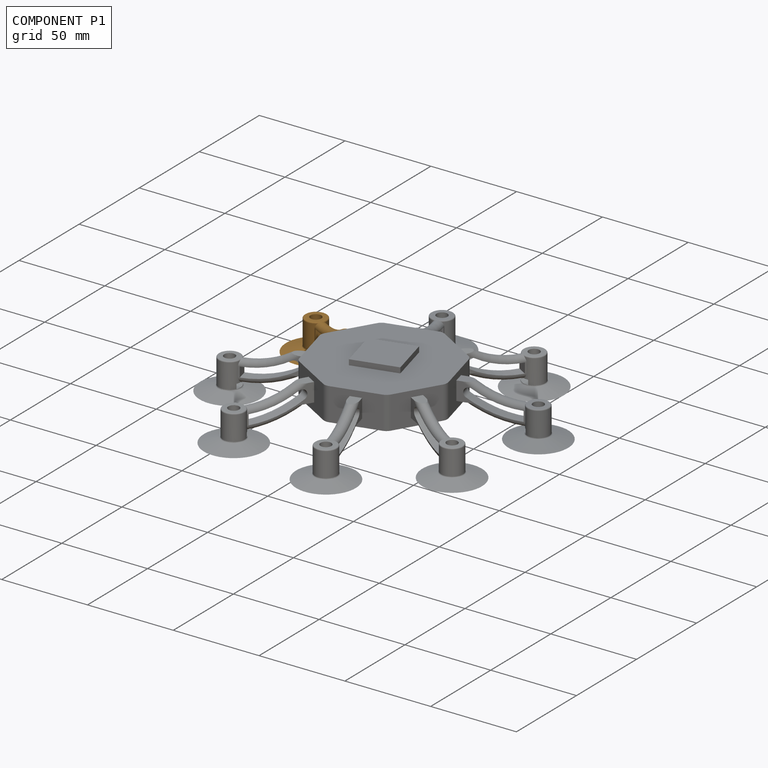
[diagram: component P1 — assembled]
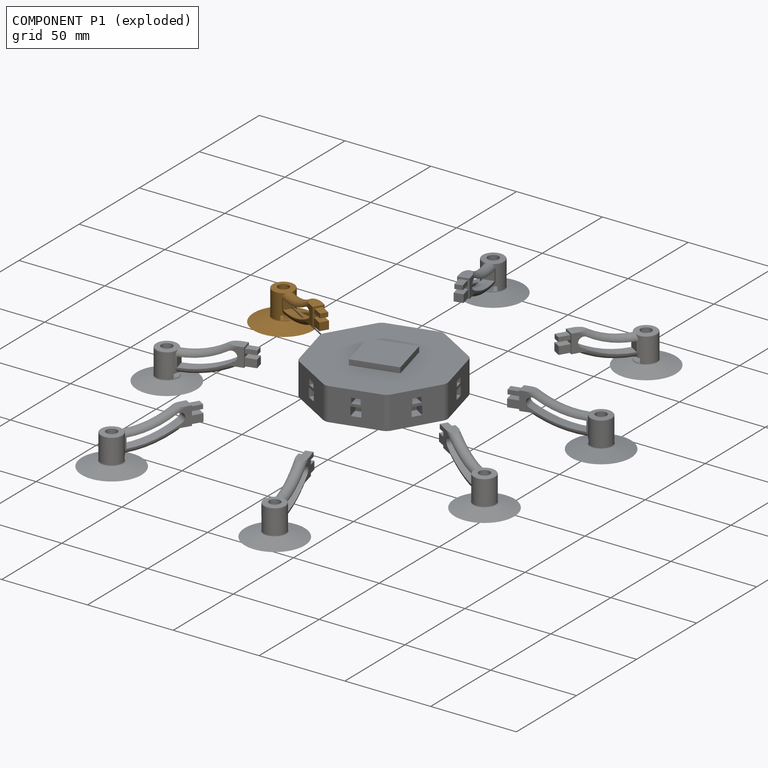
[diagram: component P1 — exploded]
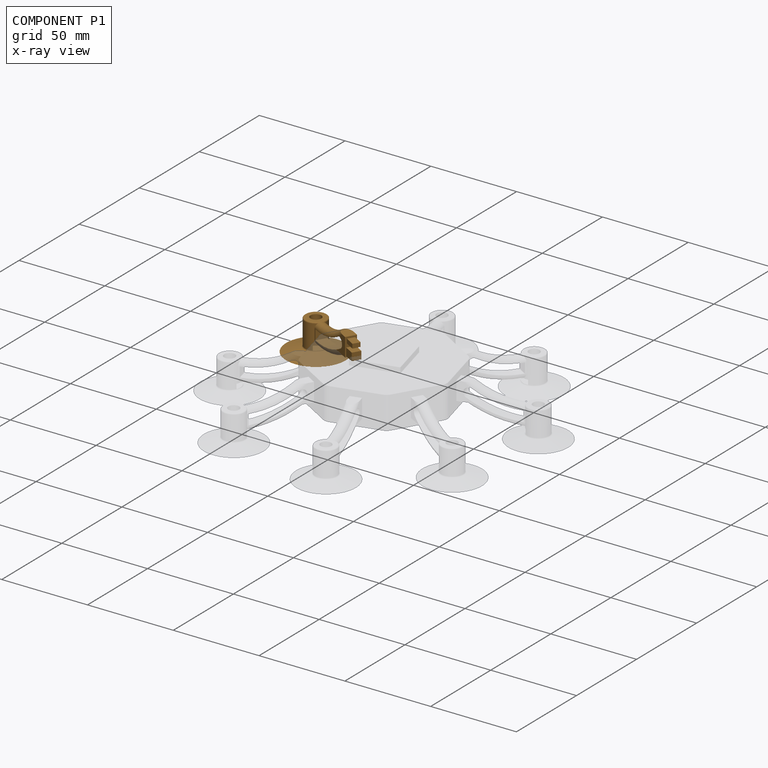
[diagram: component P1 — x-ray view]
COMPONENT P1 — geometry summary (no construction recipe available for this part):
  bounding box: 64.4 x 34.8 x 28.1 mm
  B-rep topology: 1 solid, 39 faces, 194 edges
  volume: 4360 mm^3 (7% of its bounding box)
  symmetry: mirror-symmetric across its y mid-plane
Held by: FASTENED mate "Fastened 1" to P5.
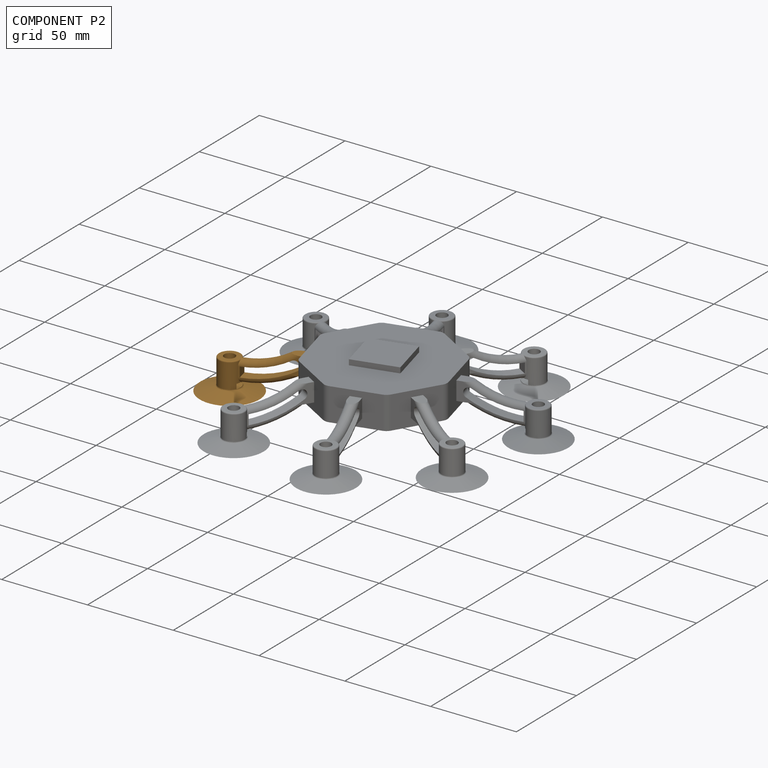
[diagram: component P2 — assembled]
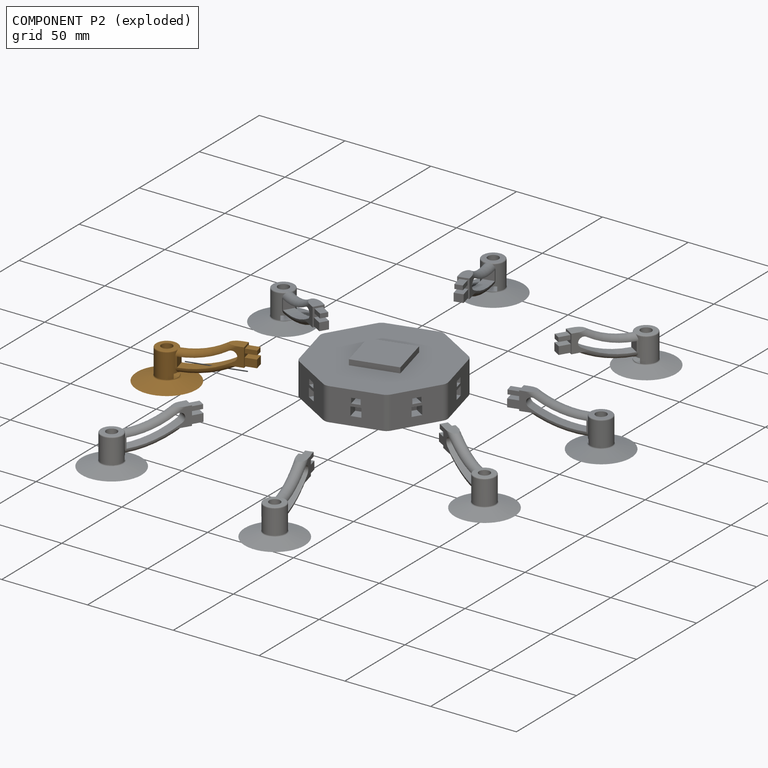
[diagram: component P2 — exploded]
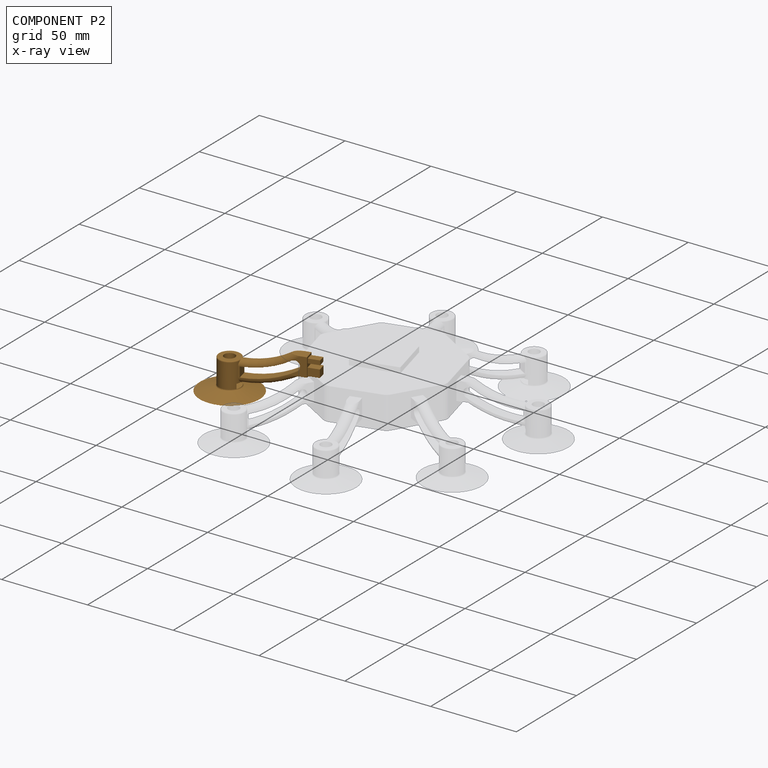
[diagram: component P2 — x-ray view]
COMPONENT P2 — geometry summary (no construction recipe available for this part):
  bounding box: 64.4 x 34.8 x 28.1 mm
  B-rep topology: 1 solid, 39 faces, 194 edges
  volume: 4360 mm^3 (7% of its bounding box)
  symmetry: mirror-symmetric across its y mid-plane
Held by: FASTENED mate "Fastened 8" to P5.
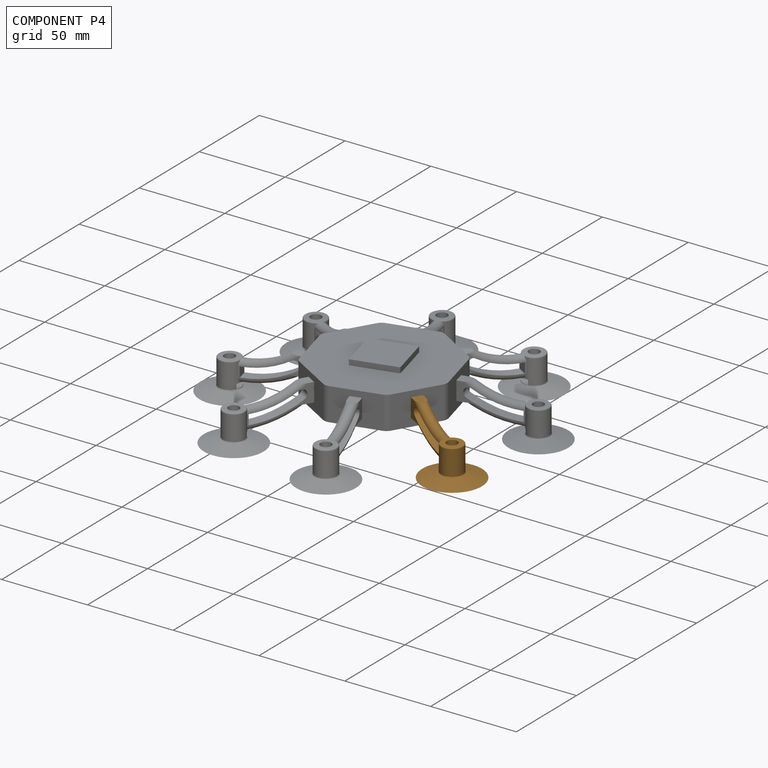
[diagram: component P4 — assembled]
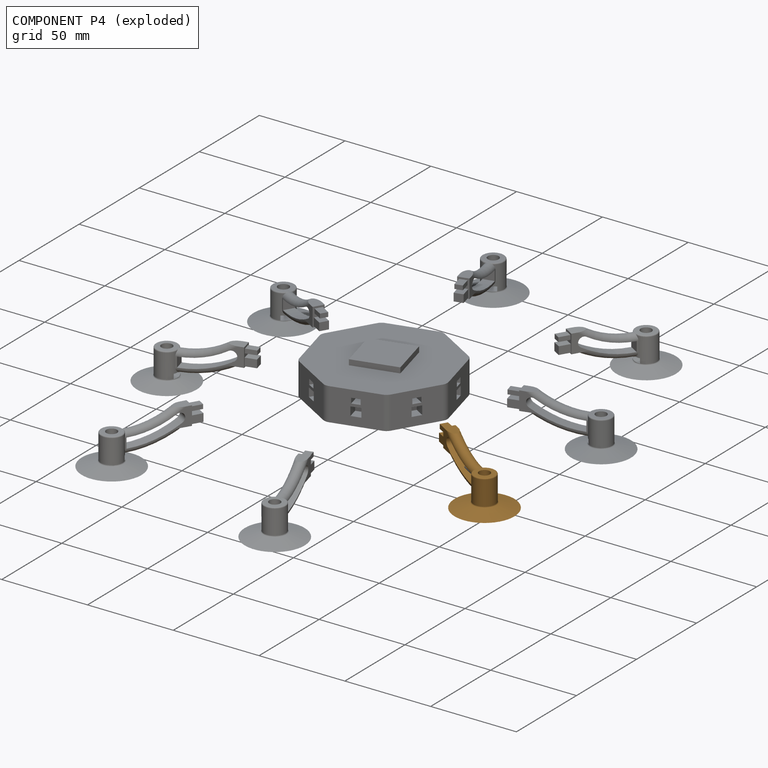
[diagram: component P4 — exploded]
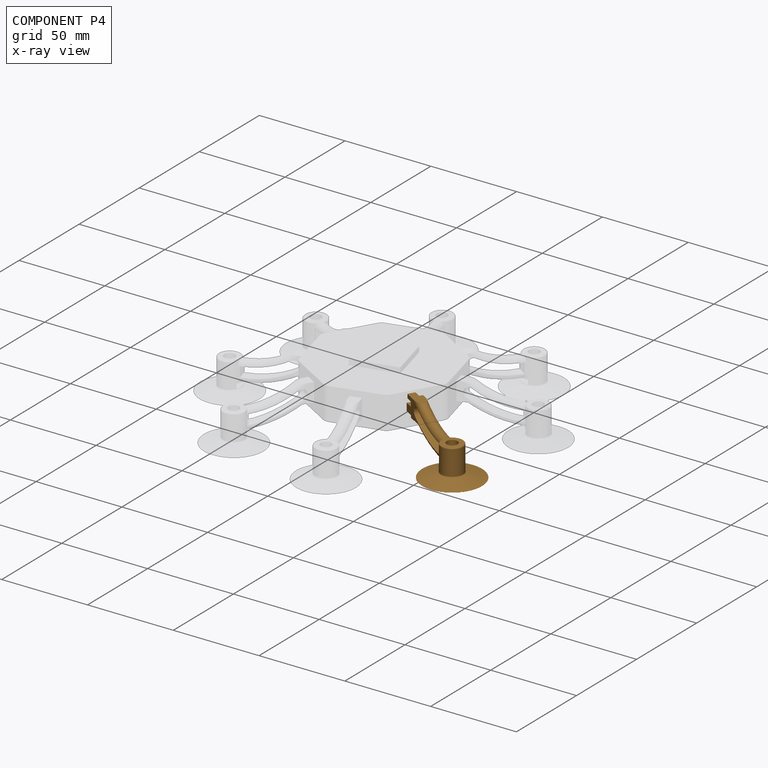
[diagram: component P4 — x-ray view]
COMPONENT P4 — geometry summary (no construction recipe available for this part):
  bounding box: 64.4 x 34.8 x 28.1 mm
  B-rep topology: 1 solid, 39 faces, 194 edges
  volume: 4360 mm^3 (7% of its bounding box)
  symmetry: mirror-symmetric across its y mid-plane
Held by: FASTENED mate "Fastened 5" to P5.
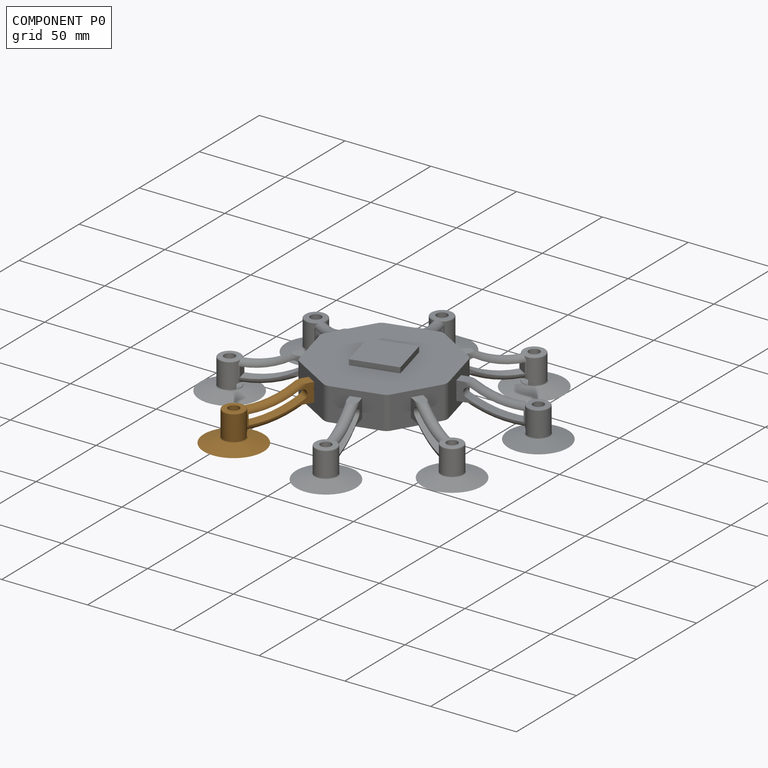
[diagram: component P0 — assembled]
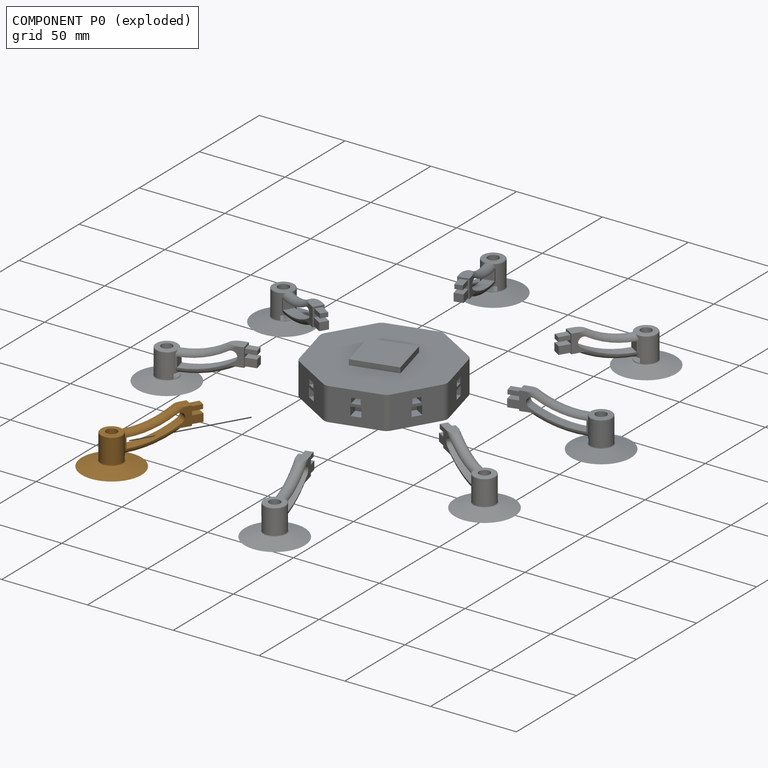
[diagram: component P0 — exploded]
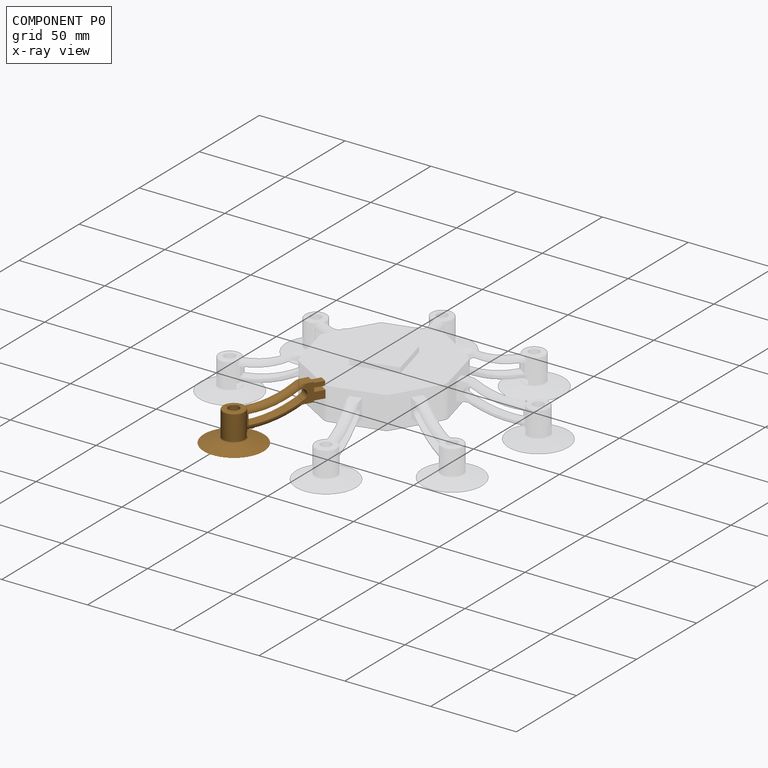
[diagram: component P0 — x-ray view]
COMPONENT P0 — geometry summary (no construction recipe available for this part):
  bounding box: 64.4 x 34.8 x 28.1 mm
  B-rep topology: 1 solid, 39 faces, 194 edges
  volume: 4360 mm^3 (7% of its bounding box)
  symmetry: mirror-symmetric across its y mid-plane
Held by: FASTENED mate "Fastened 7" to P5.
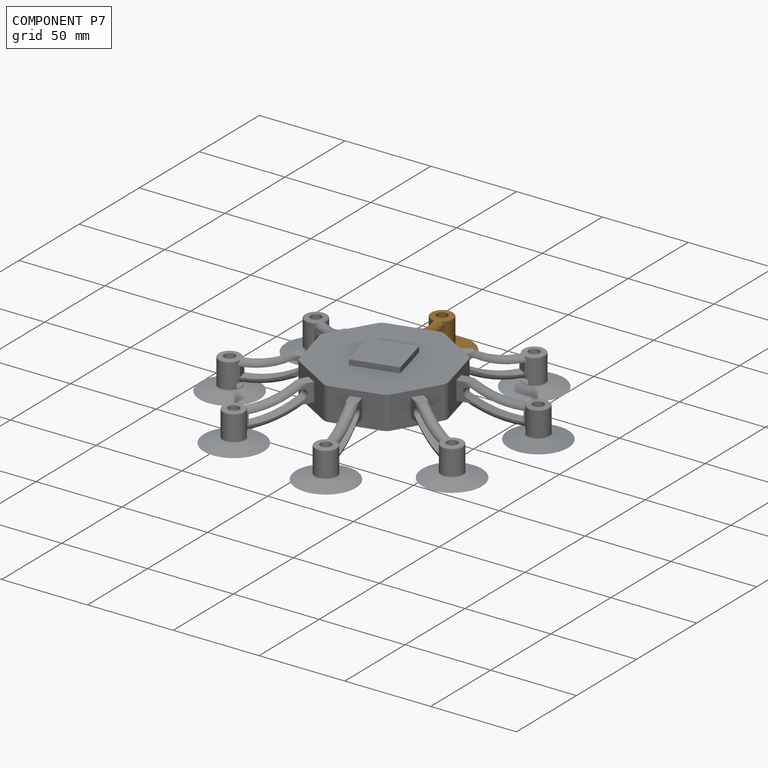
[diagram: component P7 — assembled]
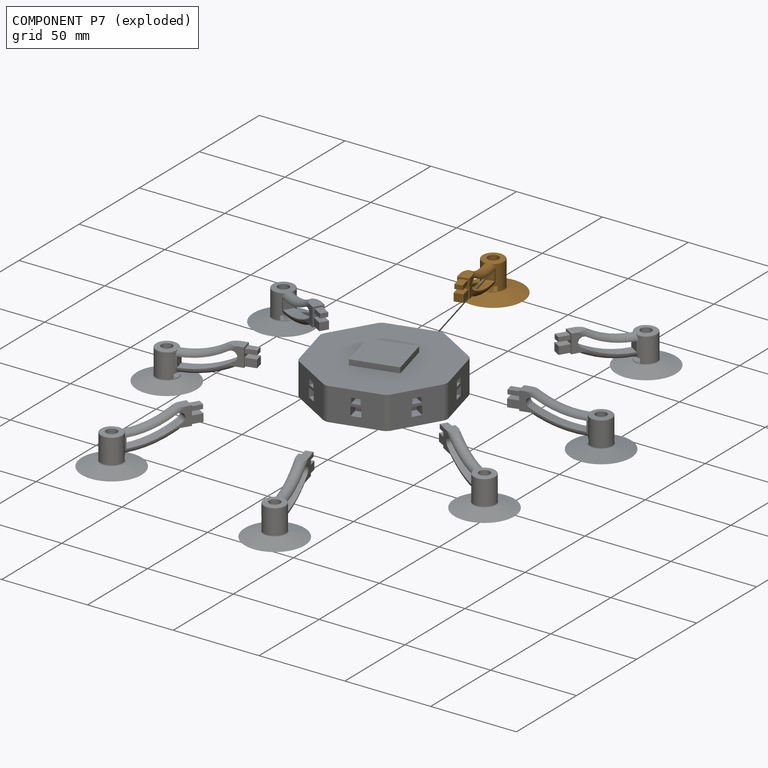
[diagram: component P7 — exploded]
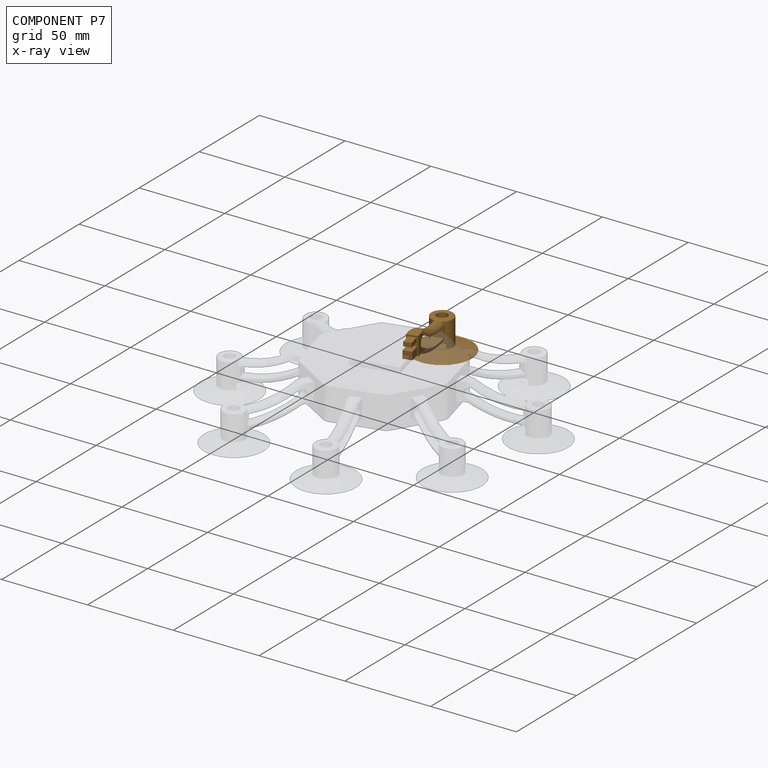
[diagram: component P7 — x-ray view]
COMPONENT P7 — geometry summary (no construction recipe available for this part):
  bounding box: 64.4 x 34.8 x 28.1 mm
  B-rep topology: 1 solid, 39 faces, 194 edges
  volume: 4360 mm^3 (7% of its bounding box)
  symmetry: mirror-symmetric across its y mid-plane
Held by: FASTENED mate "Fastened 2" to P5.
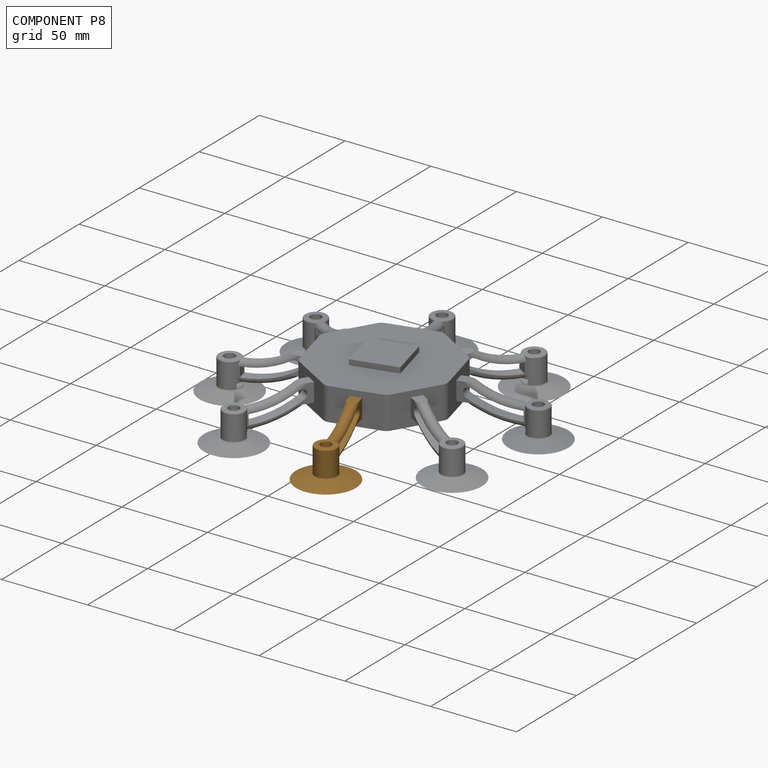
[diagram: component P8 — assembled]
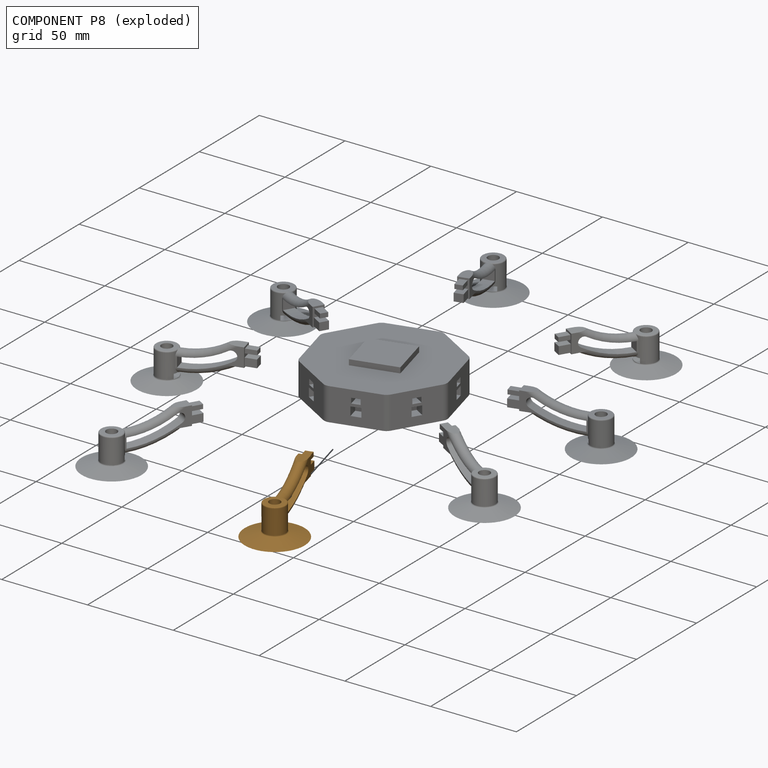
[diagram: component P8 — exploded]
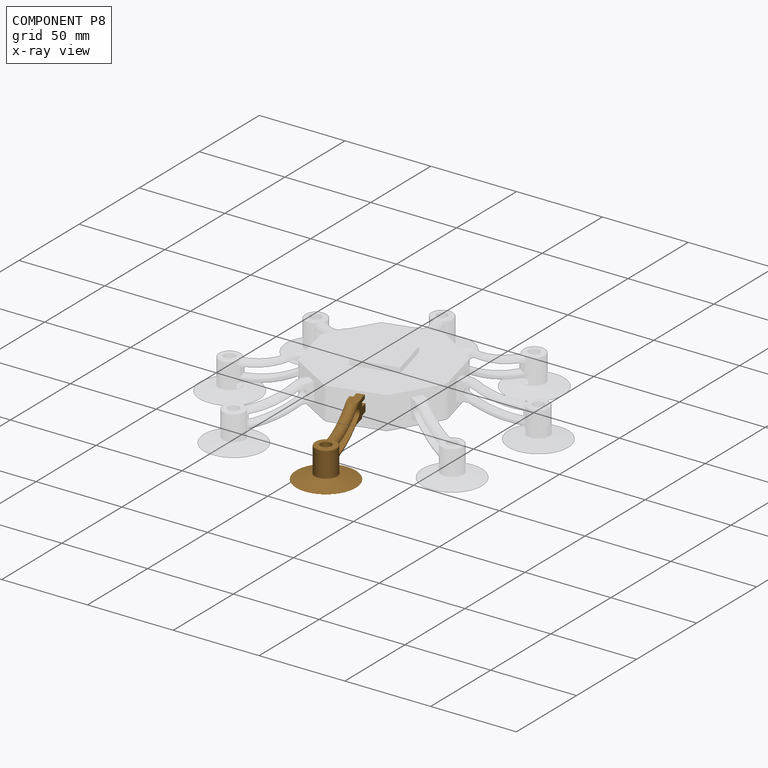
[diagram: component P8 — x-ray view]
COMPONENT P8 — geometry summary (no construction recipe available for this part):
  bounding box: 64.4 x 34.8 x 28.1 mm
  B-rep topology: 1 solid, 39 faces, 194 edges
  volume: 4360 mm^3 (7% of its bounding box)
  symmetry: mirror-symmetric across its y mid-plane
Held by: FASTENED mate "Fastened 6" to P5.
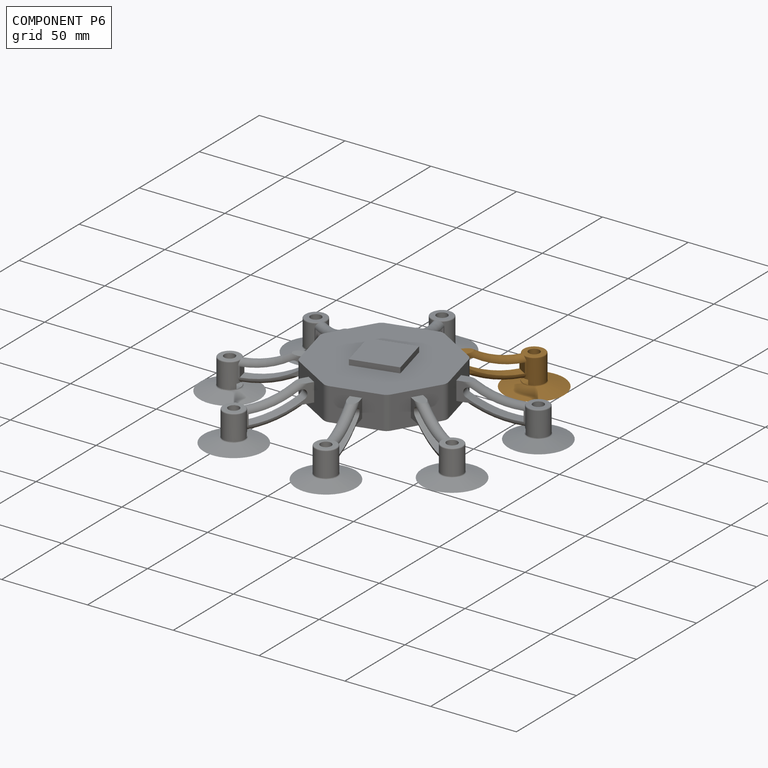
[diagram: component P6 — assembled]
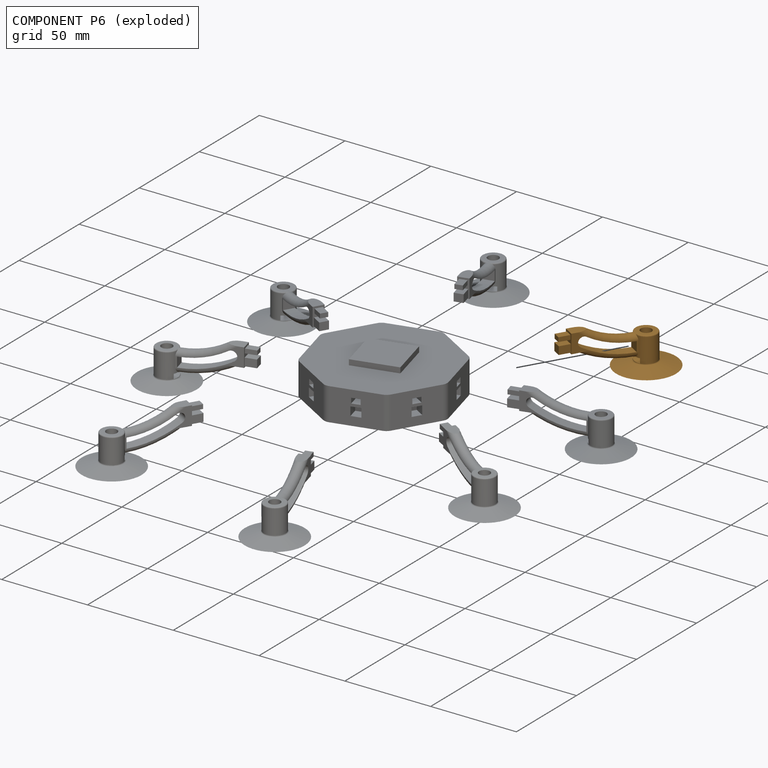
[diagram: component P6 — exploded]
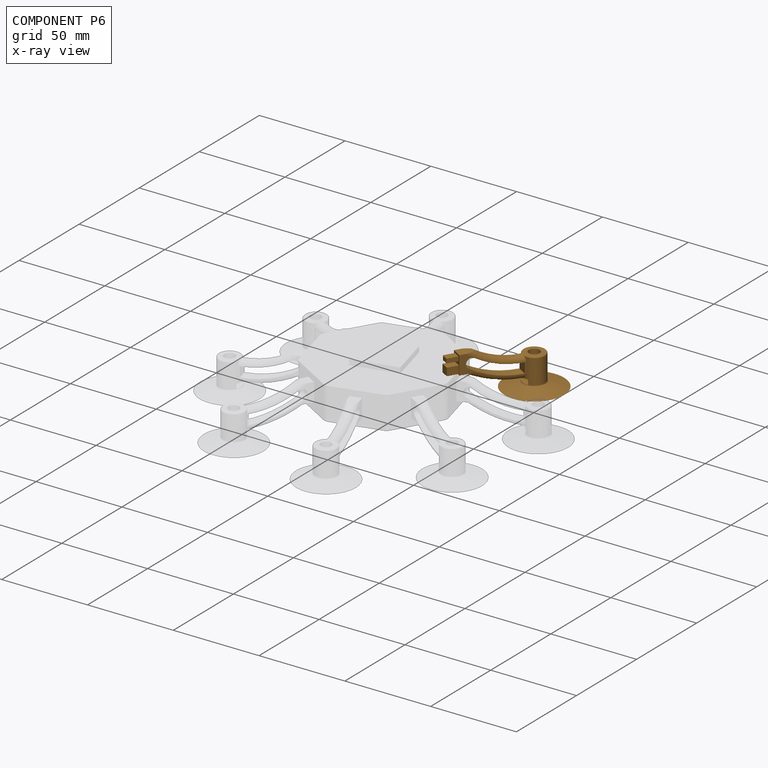
[diagram: component P6 — x-ray view]
COMPONENT P6 — geometry summary (no construction recipe available for this part):
  bounding box: 64.4 x 34.8 x 28.1 mm
  B-rep topology: 1 solid, 39 faces, 194 edges
  volume: 4360 mm^3 (7% of its bounding box)
  symmetry: mirror-symmetric across its y mid-plane
Held by: FASTENED mate "Fastened 3" to P5.
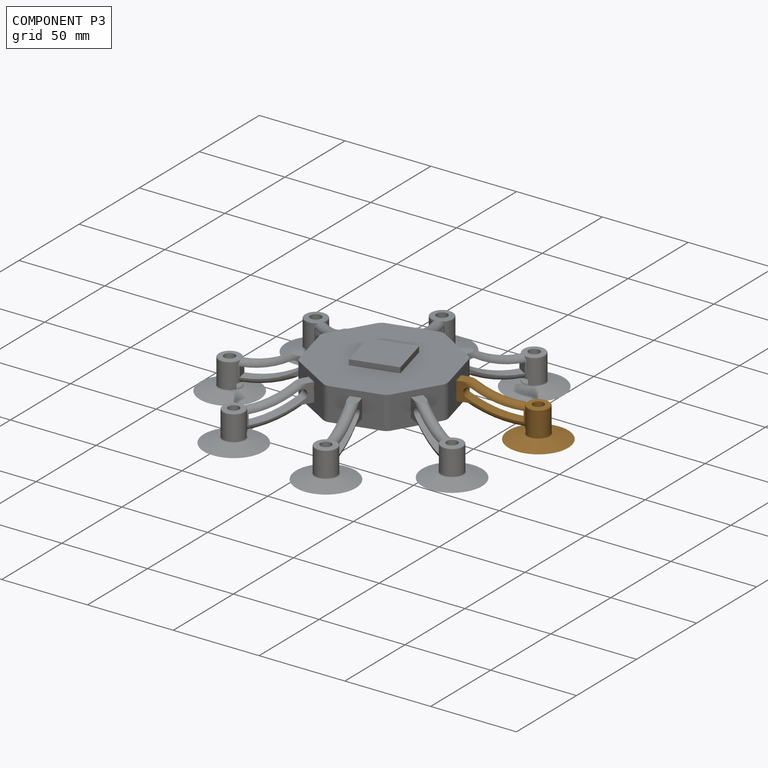
[diagram: component P3 — assembled]
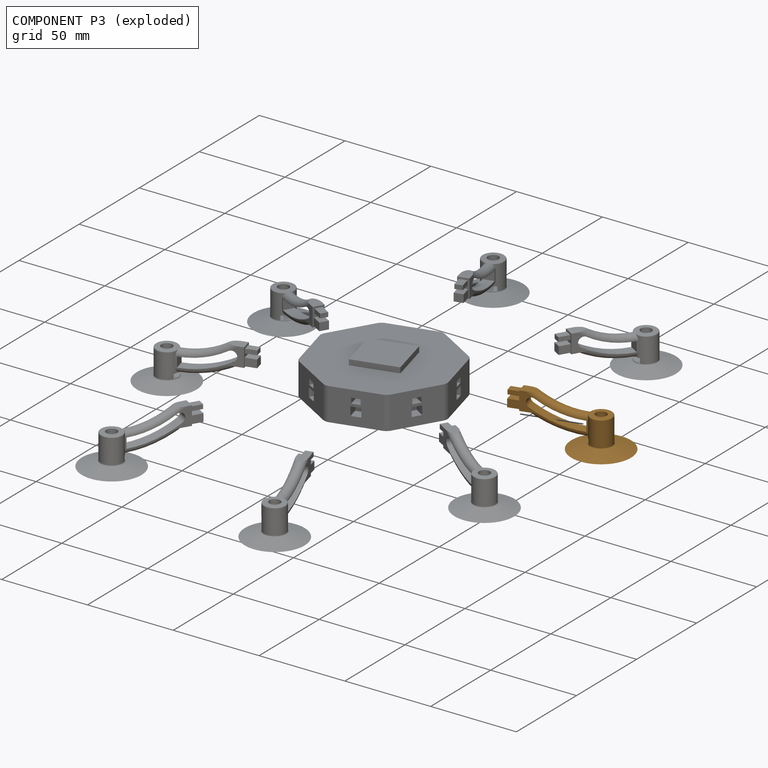
[diagram: component P3 — exploded]
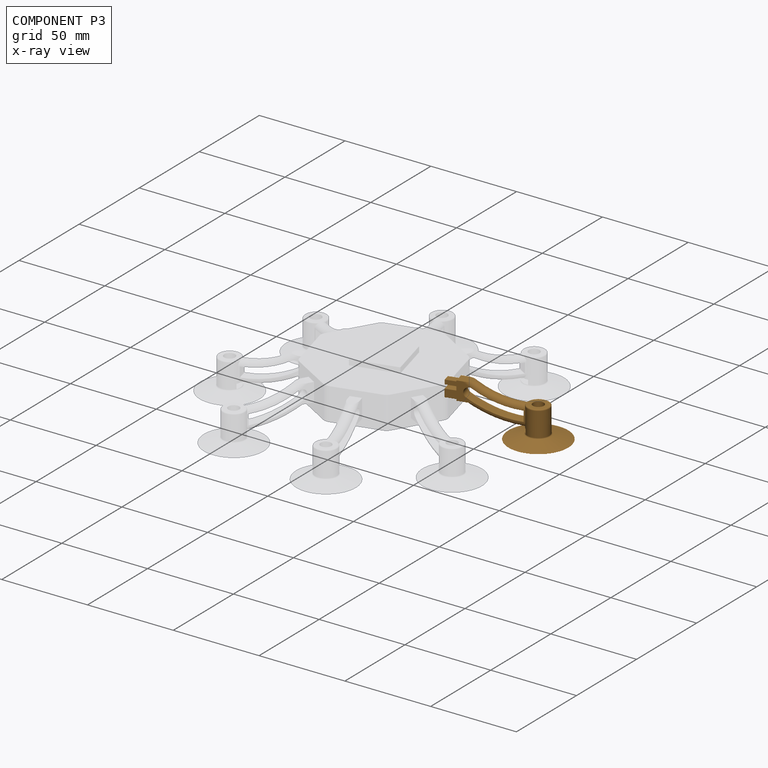
[diagram: component P3 — x-ray view]
COMPONENT P3 — geometry summary (no construction recipe available for this part):
  bounding box: 64.4 x 34.8 x 28.1 mm
  B-rep topology: 1 solid, 39 faces, 194 edges
  volume: 4360 mm^3 (7% of its bounding box)
  symmetry: mirror-symmetric across its y mid-plane
Held by: FASTENED mate "Fastened 4" to P5.
PROVENANCE & LICENSES
Assembly (occurrences, transforms, mates, per-part STEP geometry): AutoMate dataset, Zenodo record 7776208, CC0.
Construction recipes: CADFS (HuggingFace VladPyatov/CADFS, CC-BY-4.0, layered over the ABC dataset), FeatureScript reconstruction programs keyed by ABC model id.
Join: ABC meta listings map ABC model id -> Onshape documentId; within a shared document, parts are matched by geometric signature (bounding-box dims + volume at 0.1% relative tolerance, exact B-rep face/solid counts).
Verification: 1 of this assembly's 9 components carries a recipe attachment, and every attachment is mesh-verified: the CADFS STEP and the AutoMate member STEP were compared as meshes in their shared local frame (symmetric sampled-point-to-mesh distance); worst across the 1 attachment: below the mesh-comparison resolution (tessellation chordal tolerance ~0.175 mm) on a 117 mm part.
Renders: orthographic iso camera (az 35 / el 25); the floor grid conveys scale (grid pitch printed in each image; no ruler). In the exploded view each component is displaced by its stored offset vector: the offsets alone carry the explosion direction (mate normal/axis signs are not orientation cues and do not encode it), and separation distances are assigned per mate-chain, not proportionally to assembly-order depth.
